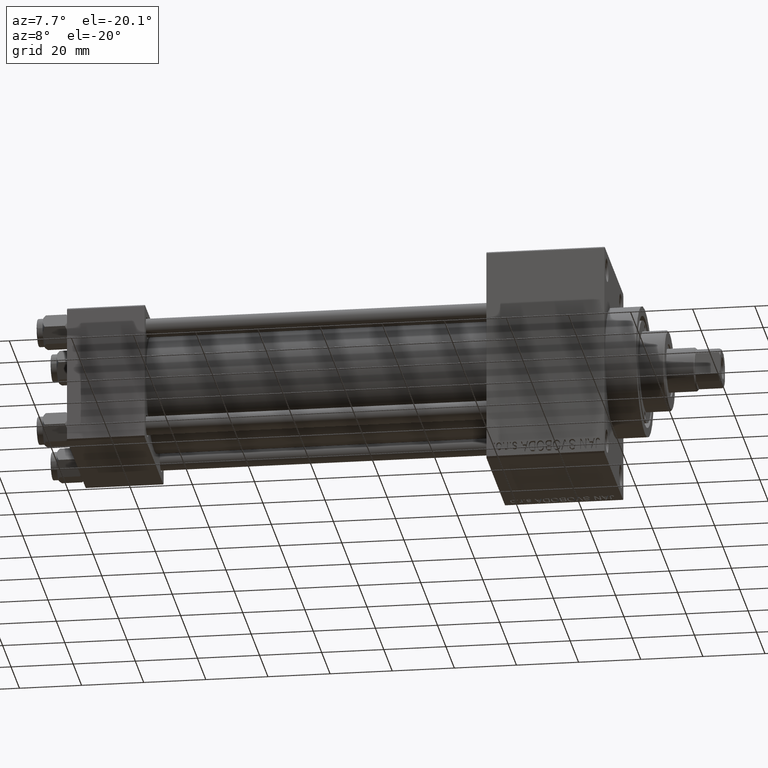
[diagram: clean part render]
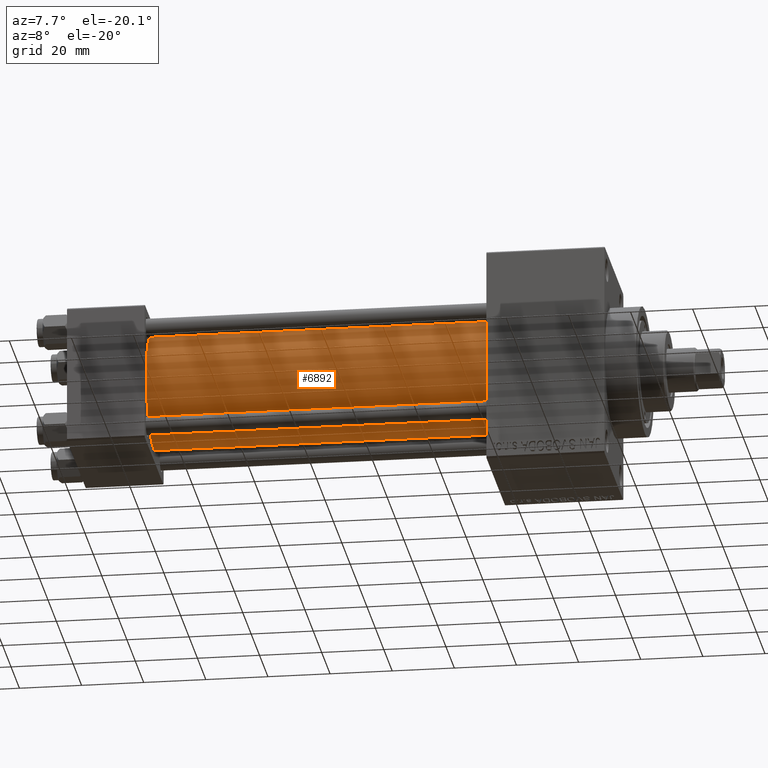
[diagram: same view with one face highlighted and labeled with its STEP entity id]
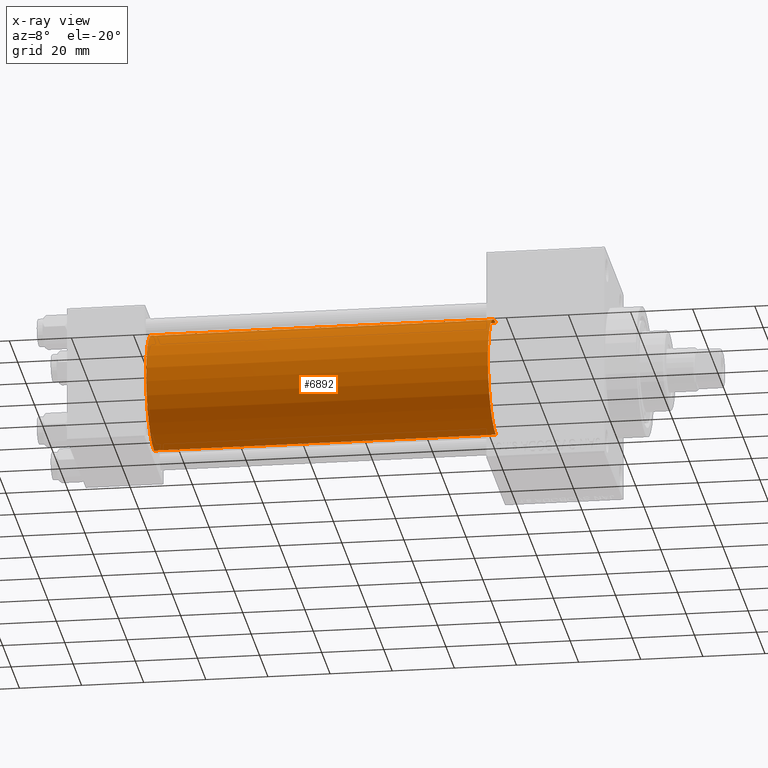
[diagram: x-ray of the same camera — body ghosted, the highlighted face saturated]
A machine part, auxiliary view. The second image highlights one B-rep face of the part: STEP entity #6892.
The next image is the same camera in x-ray: the body ghosted, the highlighted face saturated — about 0% of this face is hidden behind the body in this view.
In plain terms, the highlighted cylindrical surface (partial cylindrical patch) has radius 19 mm, axis along (-1, -0, -0).
Its self-contained STEP definition (entity closure, byte-faithful):
#1939 = CARTESIAN_POINT ( 'NONE',  ( 135.0000000000000000, -2.752562955852396712E-16, -19.00000000000000000 ) ) ;
#4329 = LINE ( 'NONE', #8415, #31374 ) ;
#4716 = CIRCLE ( 'NONE', #15441, 19.00000000000000000 ) ;
#6892 = ADVANCED_FACE ( 'NONE', ( #23137 ), #37495, .T. ) ;
#8003 = ORIENTED_EDGE ( 'NONE', *, *, #11995, .T. ) ;
#8377 = CIRCLE ( 'NONE', #15248, 19.00000000000000000 ) ;
#8415 = CARTESIAN_POINT ( 'NONE',  ( 135.0000000000000000, -2.602085213965210642E-15, 19.00000000000000000 ) ) ;
#11995 = EDGE_CURVE ( 'NONE', #36582, #43649, #4329, .T. ) ;
#13703 = CARTESIAN_POINT ( 'NONE',  ( 135.0000000000000000, -2.602085213965210642E-15, 0.000000000000000000 ) ) ;
#15248 = AXIS2_PLACEMENT_3D ( 'NONE', #43717, #26245, #37016 ) ;
#15441 = AXIS2_PLACEMENT_3D ( 'NONE', #13703, #38357, #20886 ) ;
#16669 = CARTESIAN_POINT ( 'NONE',  ( 135.0000000000000000, -2.602085213965210642E-15, 0.000000000000000000 ) ) ;
#17867 = ORIENTED_EDGE ( 'NONE', *, *, #19299, .F. ) ;
#18971 = DIRECTION ( 'NONE',  ( -1.000000000000000000, -0.000000000000000000, -0.000000000000000000 ) ) ;
#19120 = EDGE_LOOP ( 'NONE', ( #24290, #17867, #8003, #43825 ) ) ;
#19299 = EDGE_CURVE ( 'NONE', #36582, #28316, #4716, .T. ) ;
#20443 = CARTESIAN_POINT ( 'NONE',  ( 24.99999999999999289, -2.752562955852396712E-16, -19.00000000000000000 ) ) ;
#20886 = DIRECTION ( 'NONE',  ( 0.000000000000000000, 0.000000000000000000, -1.000000000000000000 ) ) ;
#21785 = VERTEX_POINT ( 'NONE', #20443 ) ;
#22027 = CARTESIAN_POINT ( 'NONE',  ( 24.99999999999999289, -2.602085213965210642E-15, 19.00000000000000000 ) ) ;
#22807 = VECTOR ( 'NONE', #39704, 1000.000000000000000 ) ;
#23137 = FACE_OUTER_BOUND ( 'NONE', #19120, .T. ) ;
#24290 = ORIENTED_EDGE ( 'NONE', *, *, #38892, .F. ) ;
#26245 = DIRECTION ( 'NONE',  ( 1.000000000000000000, -0.000000000000000000, 0.000000000000000000 ) ) ;
#28316 = VERTEX_POINT ( 'NONE', #1939 ) ;
#29173 = CARTESIAN_POINT ( 'NONE',  ( 135.0000000000000000, -2.752562955852396712E-16, -19.00000000000000000 ) ) ;
#31374 = VECTOR ( 'NONE', #18971, 1000.000000000000000 ) ;
#36582 = VERTEX_POINT ( 'NONE', #46219 ) ;
#37016 = DIRECTION ( 'NONE',  ( 0.000000000000000000, 0.000000000000000000, 1.000000000000000000 ) ) ;
#37495 = CYLINDRICAL_SURFACE ( 'NONE', #40374, 19.00000000000000000 ) ;
#37736 = DIRECTION ( 'NONE',  ( 0.000000000000000000, 0.000000000000000000, 1.000000000000000000 ) ) ;
#38357 = DIRECTION ( 'NONE',  ( 1.000000000000000000, 0.000000000000000000, 0.000000000000000000 ) ) ;
#38892 = EDGE_CURVE ( 'NONE', #28316, #21785, #47113, .T. ) ;
#39704 = DIRECTION ( 'NONE',  ( -1.000000000000000000, -0.000000000000000000, -0.000000000000000000 ) ) ;
#40374 = AXIS2_PLACEMENT_3D ( 'NONE', #16669, #41316, #37736 ) ;
#41316 = DIRECTION ( 'NONE',  ( -1.000000000000000000, -0.000000000000000000, -0.000000000000000000 ) ) ;
#42042 = EDGE_CURVE ( 'NONE', #43649, #21785, #8377, .T. ) ;
#43649 = VERTEX_POINT ( 'NONE', #22027 ) ;
#43717 = CARTESIAN_POINT ( 'NONE',  ( 24.99999999999999289, -2.602085213965210642E-15, 0.000000000000000000 ) ) ;
#43825 = ORIENTED_EDGE ( 'NONE', *, *, #42042, .T. ) ;
#46219 = CARTESIAN_POINT ( 'NONE',  ( 135.0000000000000000, -2.602085213965210642E-15, 19.00000000000000000 ) ) ;
#47113 = LINE ( 'NONE', #29173, #22807 ) ;